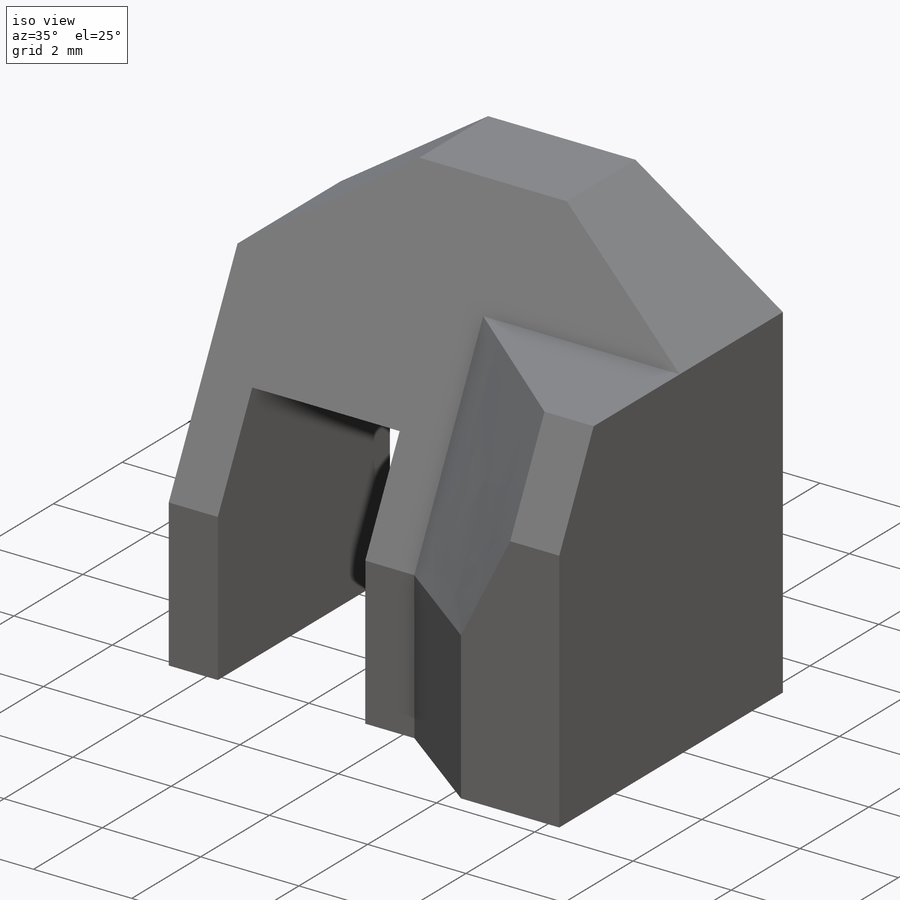
[diagram: iso view]
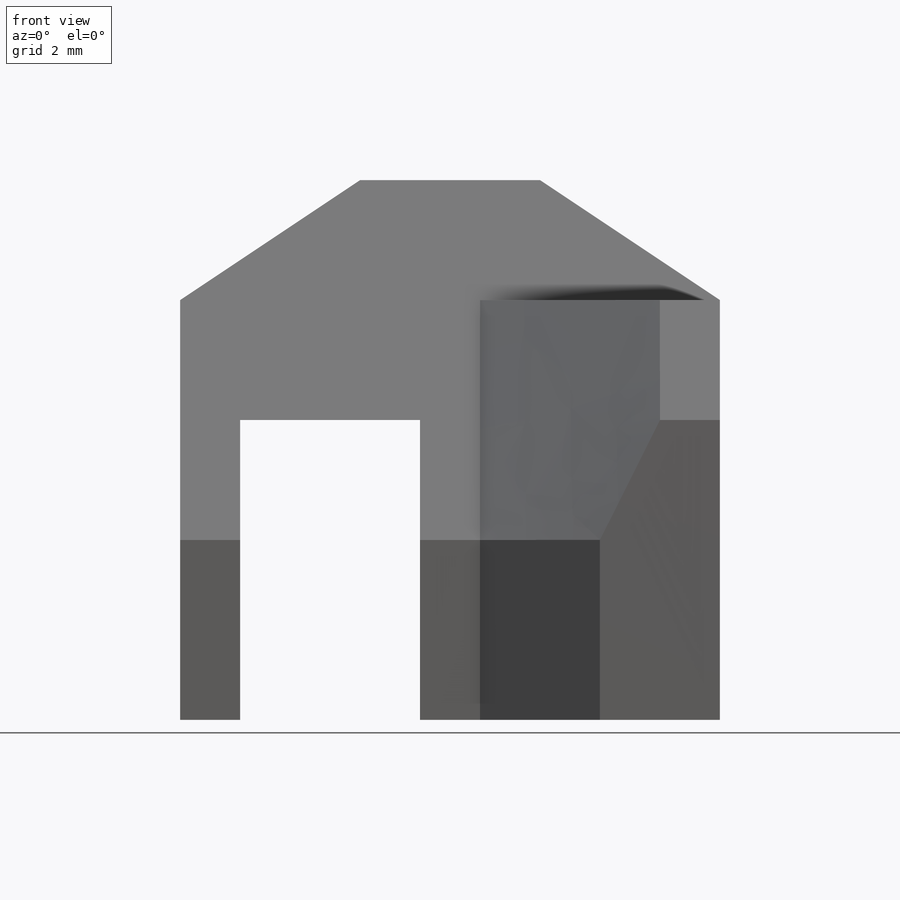
[diagram: front view]
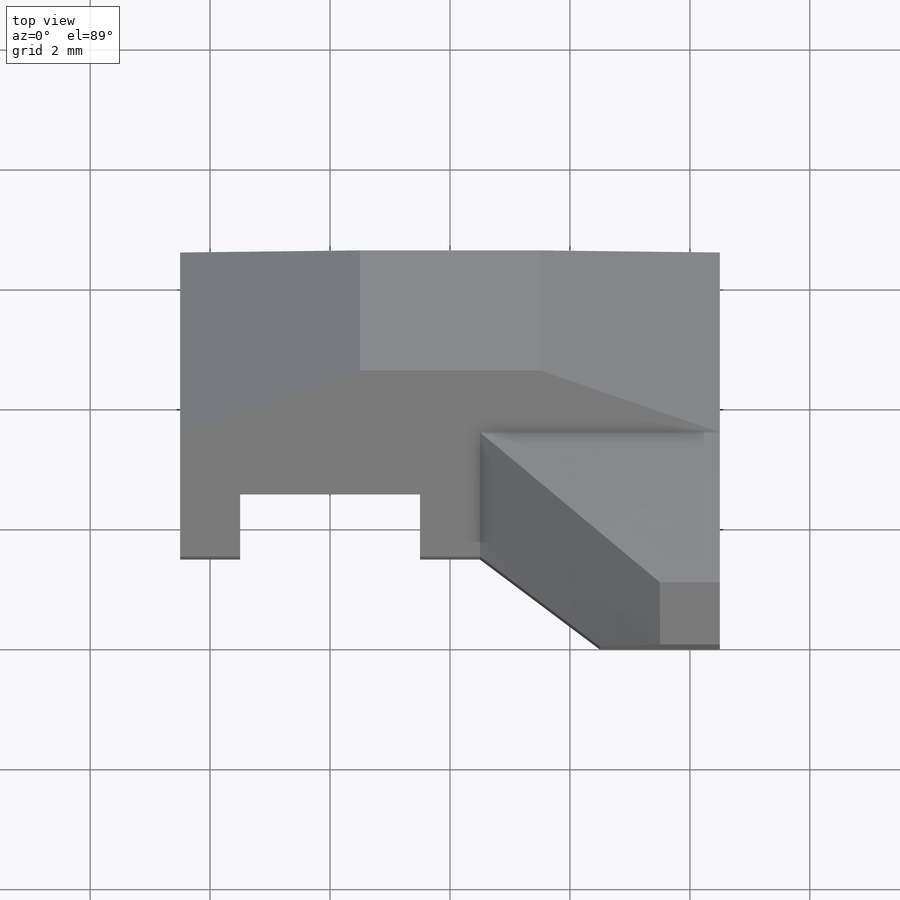
[diagram: top view]
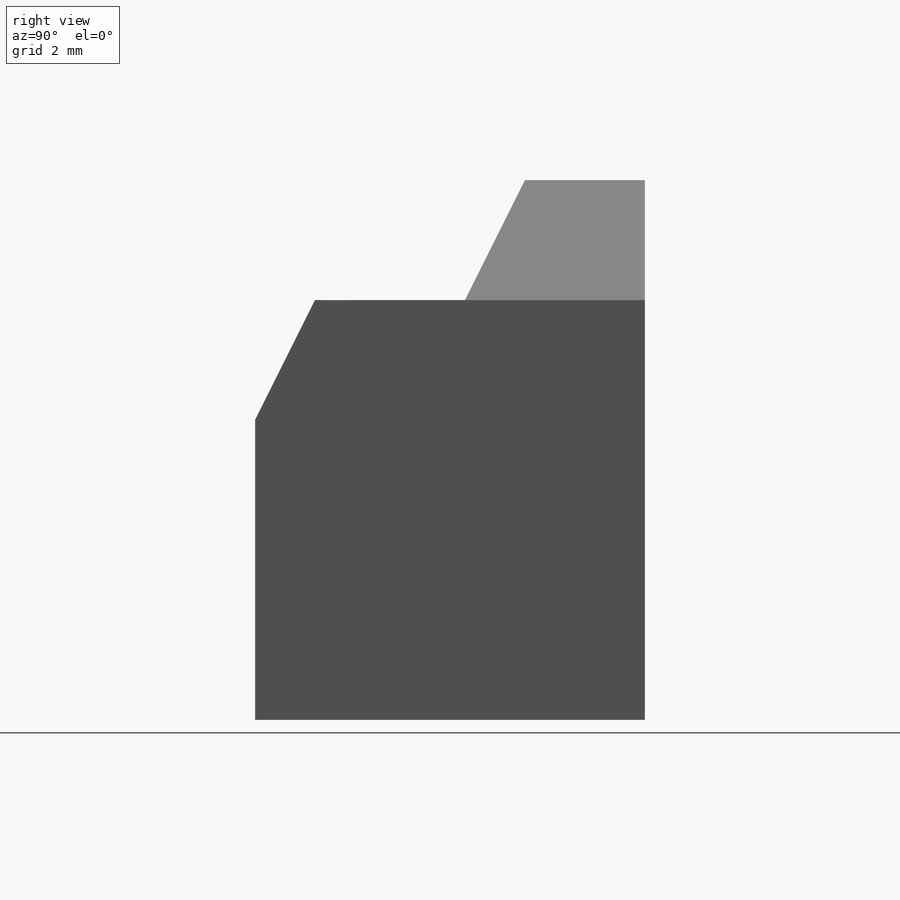
[diagram: right view]
SOLIDWORKS PART (.sldprt)
format: sldprt  version: not decoded by parser v0  size: 237,568 bytes
history: native  units: mm
features: sketch x5, cut_extrude x3, extrude x2, material x1 (+13 scaffold rows collapsed)
feature tree (24):
  scaffold x13  (default folders/planes/origin — collapsed)
  material  "Material <not specified>"
  sketch  "Sketch1"  dims[D1=9.0mm D2=9.0mm D3=2.0mm D4=3.0mm D5=3.0mm D6=2.0mm D7=3.0mm D8=5.0mm D9=1.0mm D10=5.0mm]
  extrude  "Boss-Extrude1"  Depth=5mm
  sketch  "Sketch2"  dims[D1=3.0mm D2=1.0mm D3=2.0mm]
  cut_extrude  "Cut-Extrude1"  Depth=9mm
  sketch  "Sketch3"  dims[D1=5.0mm D2=2.0mm D3=1.0mm]
  extrude  "Boss-Extrude2"  Depth=4mm
  sketch  "3DSketch1"  dims[c1.D1=1.0mm c1.D2=1.0mm c1.D3=~3.620668mm c1.D4=3.0mm c2.D3=2.0mm c2.D4=3.0mm]
  cut_extrude  "Cut-Extrude2"  Depth=4mm
  sketch  "Sketch4"
  cut_extrude  "Cut-Extrude3"  Depth=4mm
decode coverage: 9 of 10 modeling features carry decoded parameters
note: ~ marks probable driven/reference dimensions
note: suppression state not decoded; provenance and decode notes live in map.json
